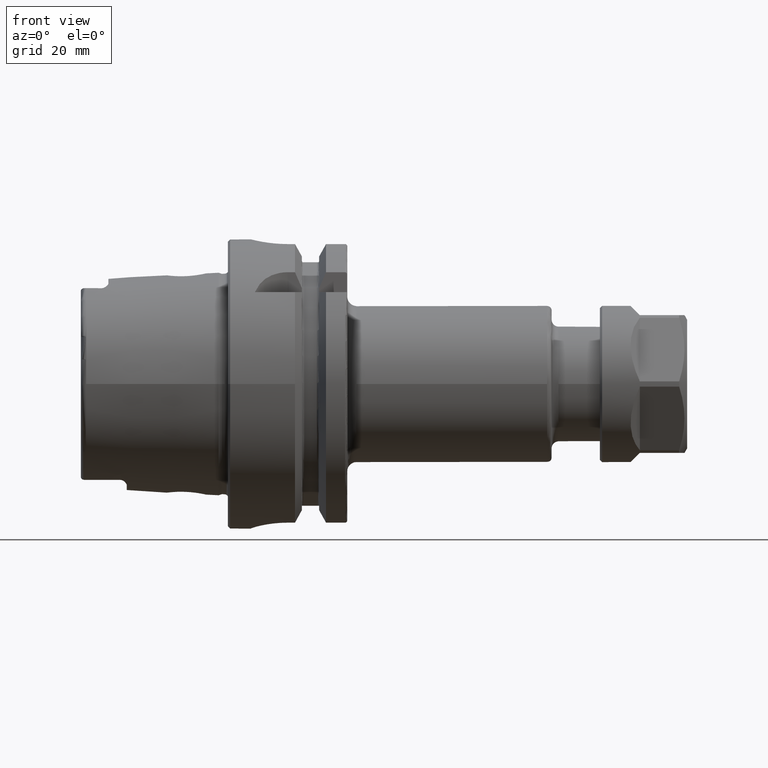
[diagram: clean part render]
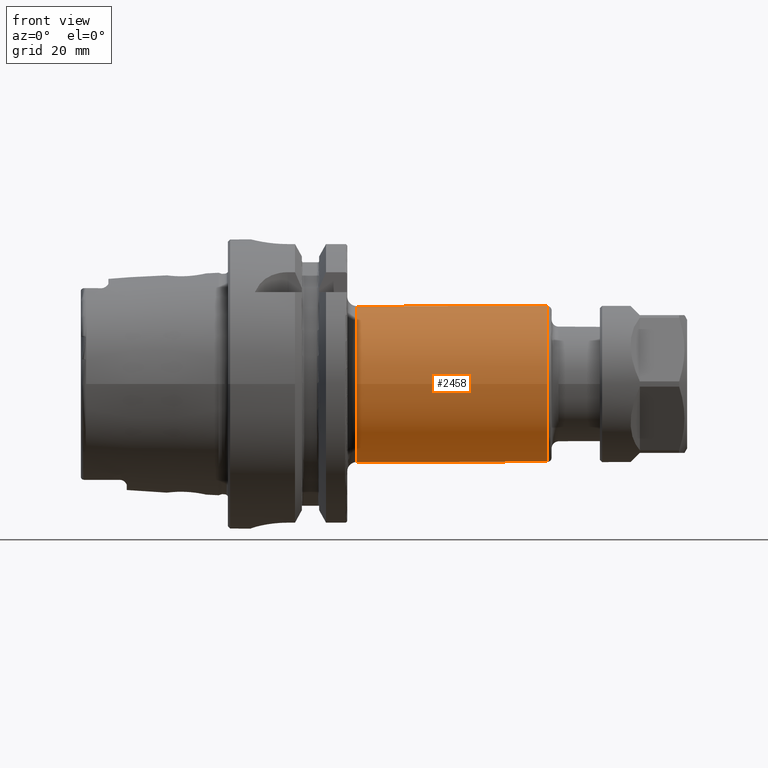
[diagram: same view with one face highlighted and labeled with its STEP entity id]
A machine part, front view. The second image highlights one B-rep face of the part: STEP entity #2458.
In plain terms, the highlighted cylindrical surface (bore or boss wall) has radius 17 mm, axis along (1, 0, 0).
Its self-contained STEP definition (entity closure, byte-faithful):
#236=CYLINDRICAL_SURFACE('',#2695,17.);
#282=FACE_OUTER_BOUND('',#433,.T.);
#433=EDGE_LOOP('',(#1688,#1689,#1690,#1691,#1692,#1693));
#595=LINE('',#3823,#731);
#731=VECTOR('',#3049,17.);
#875=CIRCLE('',#2691,17.);
#876=CIRCLE('',#2692,17.);
#878=CIRCLE('',#2696,17.);
#879=CIRCLE('',#2697,17.);
#1031=VERTEX_POINT('',#3813);
#1032=VERTEX_POINT('',#3815);
#1034=VERTEX_POINT('',#3822);
#1035=VERTEX_POINT('',#3824);
#1288=EDGE_CURVE('',#1031,#1032,#875,.T.);
#1289=EDGE_CURVE('',#1032,#1031,#876,.T.);
#1291=EDGE_CURVE('',#1032,#1034,#595,.T.);
#1292=EDGE_CURVE('',#1035,#1034,#878,.T.);
#1293=EDGE_CURVE('',#1034,#1035,#879,.T.);
#1688=ORIENTED_EDGE('',*,*,#1289,.F.);
#1689=ORIENTED_EDGE('',*,*,#1291,.T.);
#1690=ORIENTED_EDGE('',*,*,#1292,.F.);
#1691=ORIENTED_EDGE('',*,*,#1293,.F.);
#1692=ORIENTED_EDGE('',*,*,#1291,.F.);
#1693=ORIENTED_EDGE('',*,*,#1288,.F.);
#2458=ADVANCED_FACE('',(#282),#236,.T.);
#2691=AXIS2_PLACEMENT_3D('',#3816,#3039,#3040);
#2692=AXIS2_PLACEMENT_3D('',#3817,#3041,#3042);
#2695=AXIS2_PLACEMENT_3D('',#3821,#3047,#3048);
#2696=AXIS2_PLACEMENT_3D('',#3825,#3050,#3051);
#2697=AXIS2_PLACEMENT_3D('',#3826,#3052,#3053);
#3039=DIRECTION('center_axis',(1.,0.,0.));
#3040=DIRECTION('ref_axis',(0.,-1.,1.83697019872103E-16));
#3041=DIRECTION('center_axis',(1.,0.,0.));
#3042=DIRECTION('ref_axis',(0.,-1.,1.83697019872103E-16));
#3047=DIRECTION('center_axis',(1.,0.,0.));
#3048=DIRECTION('ref_axis',(0.,1.,0.));
#3049=DIRECTION('',(-1.,0.,0.));
#3050=DIRECTION('center_axis',(-1.,0.,0.));
#3051=DIRECTION('ref_axis',(0.,-1.,-1.22464679914735E-16));
#3052=DIRECTION('center_axis',(-1.,0.,0.));
#3053=DIRECTION('ref_axis',(0.,-1.,-1.22464679914735E-16));
#3813=CARTESIAN_POINT('',(69.5,-2.0818995585505E-15,17.));
#3815=CARTESIAN_POINT('',(69.5,-17.,-2.0818995585505E-15));
#3816=CARTESIAN_POINT('Origin',(69.5,0.,0.));
#3817=CARTESIAN_POINT('Origin',(69.5,0.,0.));
#3821=CARTESIAN_POINT('Origin',(48.25,0.,0.));
#3822=CARTESIAN_POINT('',(28.,-17.,-2.0818995585505E-15));
#3823=CARTESIAN_POINT('',(48.25,-17.,-2.0818995585505E-15));
#3824=CARTESIAN_POINT('',(28.,-2.0818995585505E-15,-17.));
#3825=CARTESIAN_POINT('Origin',(28.,0.,0.));
#3826=CARTESIAN_POINT('Origin',(28.,0.,0.));